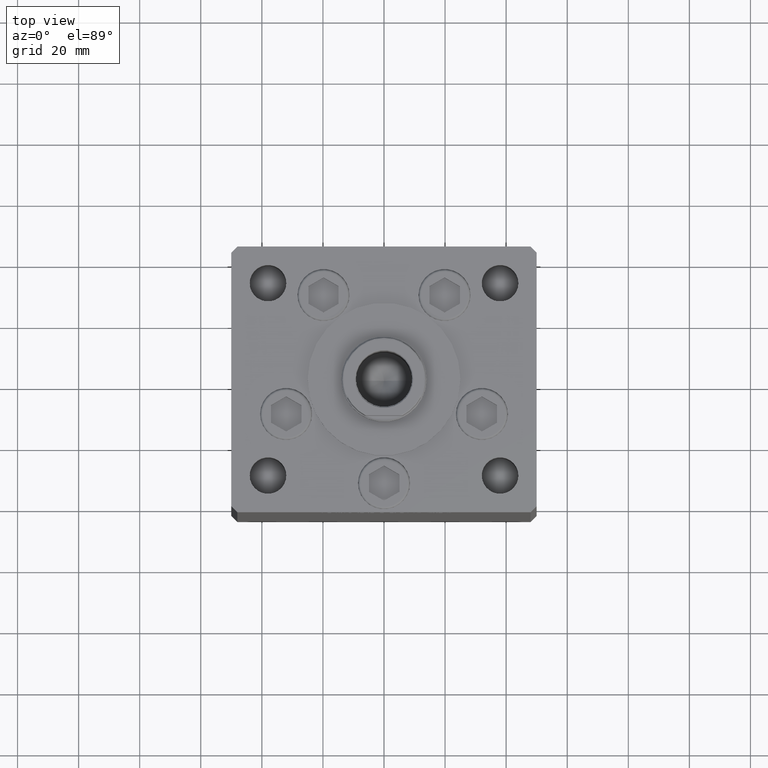
[diagram: clean part render]
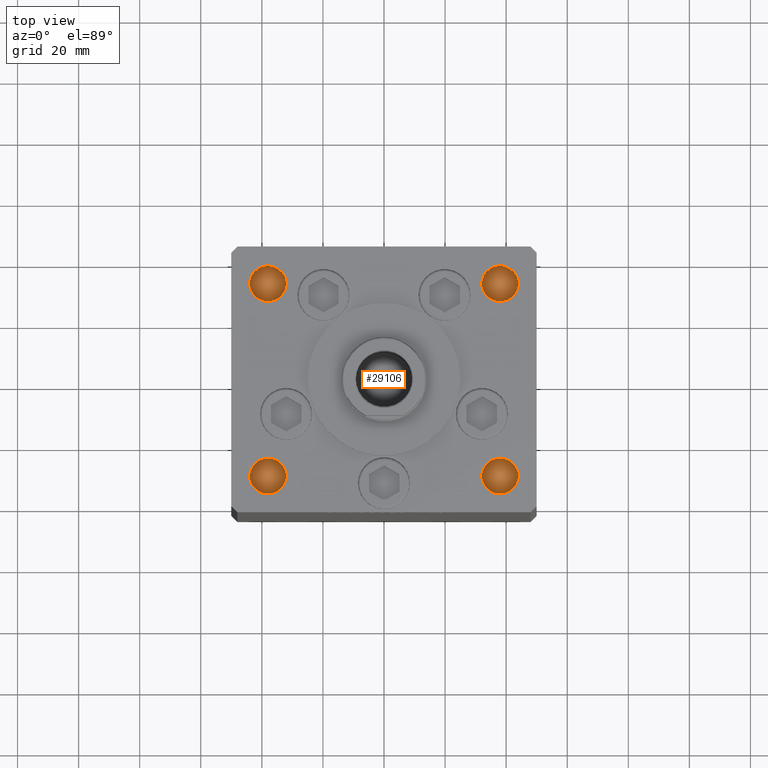
[diagram: same view with one face highlighted and labeled with its STEP entity id]
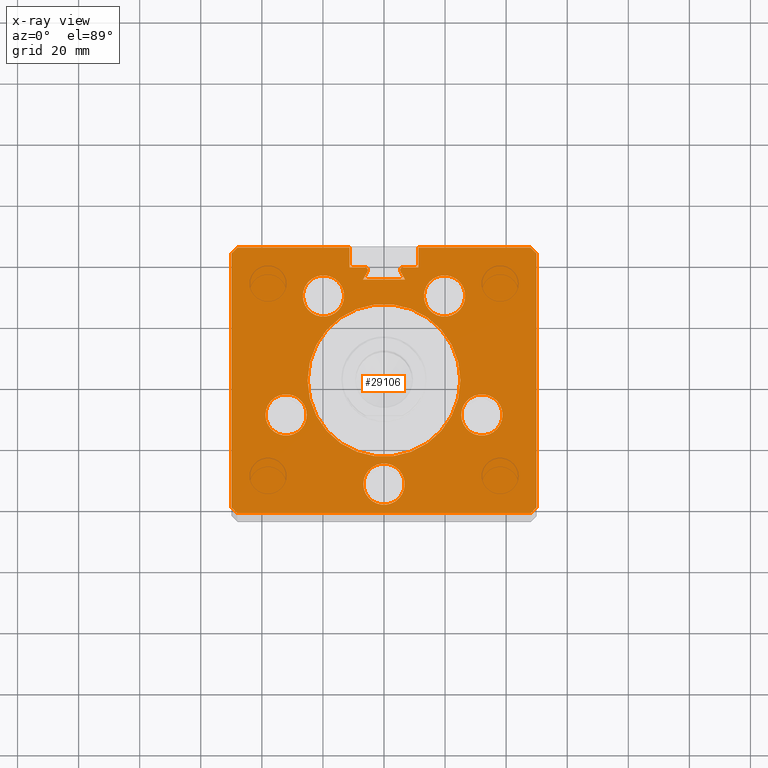
[diagram: x-ray of the same camera — body ghosted, the highlighted face saturated]
A machine part, top view. The second image highlights one B-rep face of the part: STEP entity #29106.
The next image is the same camera in x-ray: the body ghosted, the highlighted face saturated — about 0% of this face is hidden behind the body in this view.
In plain terms, the highlighted planar face has unit normal (0, 0, -1).
Its self-contained STEP definition (entity closure, byte-faithful):
#56 = EDGE_CURVE ( 'NONE', #43199, #19791, #22592, .T. ) ;
#199 = VERTEX_POINT ( 'NONE', #37324 ) ;
#221 = CARTESIAN_POINT ( 'NONE',  ( 6.750000000000003553, -34.00000000000000000, 148.5000000000000000 ) ) ;
#310 = CIRCLE ( 'NONE', #44102, 6.749999999999999112 ) ;
#437 = CIRCLE ( 'NONE', #17263, 6.749999999999999112 ) ;
#471 = CIRCLE ( 'NONE', #33299, 6.749999999999999112 ) ;
#813 = VECTOR ( 'NONE', #31363, 1000.000000000000000 ) ;
#921 = VERTEX_POINT ( 'NONE', #2554 ) ;
#1151 = CARTESIAN_POINT ( 'NONE',  ( 25.30550741379015989, -11.33333333333332682, 148.5000000000000000 ) ) ;
#1188 = AXIS2_PLACEMENT_3D ( 'NONE', #34553, #46676, #10538 ) ;
#1381 = VERTEX_POINT ( 'NONE', #45202 ) ;
#1489 = CARTESIAN_POINT ( 'NONE',  ( -6.876153656360465050, 32.99999999999986500, 148.5000000000000000 ) ) ;
#1577 = VERTEX_POINT ( 'NONE', #48288 ) ;
#1777 = CARTESIAN_POINT ( 'NONE',  ( 0.000000000000000000, 0.000000000000000000, 148.5000000000000000 ) ) ;
#1908 = DIRECTION ( 'NONE',  ( 0.000000000000000000, 0.000000000000000000, -1.000000000000000000 ) ) ;
#2016 = ORIENTED_EDGE ( 'NONE', *, *, #36151, .T. ) ;
#2270 = EDGE_LOOP ( 'NONE', ( #43406, #33027 ) ) ;
#2280 = FACE_BOUND ( 'NONE', #27965, .T. ) ;
#2554 = CARTESIAN_POINT ( 'NONE',  ( 11.24999999999999822, 36.99999999999999289, 148.5000000000000000 ) ) ;
#2576 = EDGE_CURVE ( 'NONE', #36207, #1381, #16631, .T. ) ;
#2827 = DIRECTION ( 'NONE',  ( 0.000000000000000000, 0.000000000000000000, -1.000000000000000000 ) ) ;
#2949 = CARTESIAN_POINT ( 'NONE',  ( 6.183333333333997928, 36.06666666666598786, 148.5000000000000000 ) ) ;
#3422 = CARTESIAN_POINT ( 'NONE',  ( -19.44653440471352113, 11.22746187336665713, 148.5000000000000000 ) ) ;
#3482 = CARTESIAN_POINT ( 'NONE',  ( 0.000000000000000000, 0.000000000000000000, 148.5000000000000000 ) ) ;
#3830 = VERTEX_POINT ( 'NONE', #35268 ) ;
#3851 = EDGE_CURVE ( 'NONE', #38135, #921, #34479, .T. ) ;
#4039 = VECTOR ( 'NONE', #12987, 1000.000000000000000 ) ;
#4229 = VERTEX_POINT ( 'NONE', #35721 ) ;
#4366 = VERTEX_POINT ( 'NONE', #15081 ) ;
#4700 = VECTOR ( 'NONE', #14923, 1000.000000000000000 ) ;
#4837 = VERTEX_POINT ( 'NONE', #45790 ) ;
#4892 = AXIS2_PLACEMENT_3D ( 'NONE', #19488, #27119, #31861 ) ;
#5062 = DIRECTION ( 'NONE',  ( 0.4999999999999996114, -0.8660254037844389297, 0.000000000000000000 ) ) ;
#5672 = EDGE_CURVE ( 'NONE', #50940, #41964, #10432, .T. ) ;
#5759 = DIRECTION ( 'NONE',  ( 0.000000000000000000, 0.000000000000000000, 1.000000000000000000 ) ) ;
#5868 = VERTEX_POINT ( 'NONE', #10932 ) ;
#6228 = VECTOR ( 'NONE', #11863, 1000.000000000000000 ) ;
#6359 = VERTEX_POINT ( 'NONE', #34381 ) ;
#6761 = CARTESIAN_POINT ( 'NONE',  ( -48.00000000000000711, 43.50000000000000000, 148.5000000000000000 ) ) ;
#6852 = DIRECTION ( 'NONE',  ( -0.000000000000000000, 0.000000000000000000, 1.000000000000000000 ) ) ;
#6957 = CARTESIAN_POINT ( 'NONE',  ( 50.00000000000001421, 41.49999999999999289, 148.5000000000000000 ) ) ;
#6961 = DIRECTION ( 'NONE',  ( 1.000000000000000000, 0.000000000000000000, 0.000000000000000000 ) ) ;
#8124 = CARTESIAN_POINT ( 'NONE',  ( 32.05550741379015989, -11.33333333333332682, 148.5000000000000000 ) ) ;
#8386 = VERTEX_POINT ( 'NONE', #30360 ) ;
#8706 = DIRECTION ( 'NONE',  ( 0.000000000000000000, 0.000000000000000000, 1.000000000000000000 ) ) ;
#8797 = EDGE_CURVE ( 'NONE', #41261, #41526, #437, .T. ) ;
#8938 = VECTOR ( 'NONE', #25297, 1000.000000000000000 ) ;
#9125 = DIRECTION ( 'NONE',  ( 0.000000000000000000, 0.000000000000000000, 1.000000000000000000 ) ) ;
#9154 = ORIENTED_EDGE ( 'NONE', *, *, #25549, .T. ) ;
#9158 = VERTEX_POINT ( 'NONE', #33146 ) ;
#9309 = VERTEX_POINT ( 'NONE', #20111 ) ;
#9416 = EDGE_LOOP ( 'NONE', ( #35219, #38385 ) ) ;
#10227 = VERTEX_POINT ( 'NONE', #14912 ) ;
#10249 = DIRECTION ( 'NONE',  ( 1.000000000000000000, 0.000000000000000000, 0.000000000000000000 ) ) ;
#10432 = CIRCLE ( 'NONE', #1188, 6.749999999999999112 ) ;
#10538 = DIRECTION ( 'NONE',  ( 1.000000000000000000, 0.000000000000000000, 0.000000000000000000 ) ) ;
#10723 = VECTOR ( 'NONE', #23046, 1000.000000000000000 ) ;
#10932 = CARTESIAN_POINT ( 'NONE',  ( -11.24999999999999822, 43.50000000000000000, 148.5000000000000000 ) ) ;
#11621 = CARTESIAN_POINT ( 'NONE',  ( -5.249999999999996447, 36.06666666666598786, 148.5000000000000000 ) ) ;
#11863 = DIRECTION ( 'NONE',  ( 0.4999999999999996114, 0.8660254037844389297, 0.000000000000000000 ) ) ;
#12066 = DIRECTION ( 'NONE',  ( 0.000000000000000000, 0.000000000000000000, 1.000000000000000000 ) ) ;
#12857 = VERTEX_POINT ( 'NONE', #221 ) ;
#12881 = CARTESIAN_POINT ( 'NONE',  ( 0.000000000000000000, 32.99999999999986500, 148.5000000000000000 ) ) ;
#12987 = DIRECTION ( 'NONE',  ( -1.000000000000000000, 0.000000000000000000, 0.000000000000000000 ) ) ;
#13073 = DIRECTION ( 'NONE',  ( 1.000000000000000000, 0.000000000000000000, 0.000000000000000000 ) ) ;
#13166 = DIRECTION ( 'NONE',  ( 1.000000000000000000, 0.000000000000000000, 0.000000000000000000 ) ) ;
#13953 = CARTESIAN_POINT ( 'NONE',  ( 49.99999999999998579, -41.49999999999999289, 148.5000000000000000 ) ) ;
#14143 = FACE_BOUND ( 'NONE', #9416, .T. ) ;
#14289 = EDGE_CURVE ( 'NONE', #1577, #48088, #44427, .T. ) ;
#14325 = AXIS2_PLACEMENT_3D ( 'NONE', #18053, #9125, #13073 ) ;
#14627 = EDGE_LOOP ( 'NONE', ( #25777, #26316 ) ) ;
#14912 = CARTESIAN_POINT ( 'NONE',  ( 38.80550741379015989, -11.33333333333332682, 148.5000000000000000 ) ) ;
#14923 = DIRECTION ( 'NONE',  ( -0.7071067811865487940, -0.7071067811865463515, 0.000000000000000000 ) ) ;
#14983 = DIRECTION ( 'NONE',  ( 1.000000000000000000, 0.000000000000000000, 0.000000000000000000 ) ) ;
#15081 = CARTESIAN_POINT ( 'NONE',  ( 49.99999999999998579, -41.49999999999999289, 148.5000000000000000 ) ) ;
#15088 = VECTOR ( 'NONE', #5062, 1000.000000000000000 ) ;
#15283 = ORIENTED_EDGE ( 'NONE', *, *, #2576, .T. ) ;
#15338 = DIRECTION ( 'NONE',  ( 1.000000000000000000, 0.000000000000000000, 0.000000000000000000 ) ) ;
#15991 = LINE ( 'NONE', #32336, #19634 ) ;
#16087 = VERTEX_POINT ( 'NONE', #35440 ) ;
#16222 = ORIENTED_EDGE ( 'NONE', *, *, #22995, .T. ) ;
#16391 = CARTESIAN_POINT ( 'NONE',  ( 32.05550741379015989, -11.33333333333332682, 148.5000000000000000 ) ) ;
#16581 = EDGE_CURVE ( 'NONE', #4366, #9158, #25577, .T. ) ;
#16592 = DIRECTION ( 'NONE',  ( -1.000000000000000000, 0.000000000000000000, 0.000000000000000000 ) ) ;
#16603 = LINE ( 'NONE', #21342, #47108 ) ;
#16631 = LINE ( 'NONE', #36679, #29058 ) ;
#16678 = EDGE_CURVE ( 'NONE', #41964, #50940, #48670, .T. ) ;
#16861 = CARTESIAN_POINT ( 'NONE',  ( 13.07068048781373371, 27.62500000000000711, 148.5000000000000000 ) ) ;
#17106 = ORIENTED_EDGE ( 'NONE', *, *, #29124, .T. ) ;
#17203 = CARTESIAN_POINT ( 'NONE',  ( 0.000000000000000000, 36.99999999999999289, 148.5000000000000000 ) ) ;
#17263 = AXIS2_PLACEMENT_3D ( 'NONE', #46402, #46915, #10249 ) ;
#17402 = CARTESIAN_POINT ( 'NONE',  ( -38.80550741379015989, -11.33333333333333570, 148.5000000000000000 ) ) ;
#17919 = EDGE_CURVE ( 'NONE', #12857, #4837, #41963, .T. ) ;
#17990 = DIRECTION ( 'NONE',  ( 1.000000000000000000, 0.000000000000000000, 0.000000000000000000 ) ) ;
#18053 = CARTESIAN_POINT ( 'NONE',  ( 19.82068048781373548, 27.62500000000000711, 148.5000000000000000 ) ) ;
#18103 = DIRECTION ( 'NONE',  ( 1.000000000000000000, 0.000000000000000000, 0.000000000000000000 ) ) ;
#18137 = DIRECTION ( 'NONE',  ( 1.000000000000000000, 0.000000000000000000, 0.000000000000000000 ) ) ;
#18155 = EDGE_CURVE ( 'NONE', #33958, #4229, #31889, .T. ) ;
#18269 = LINE ( 'NONE', #45996, #813 ) ;
#18363 = FACE_BOUND ( 'NONE', #24143, .T. ) ;
#18372 = AXIS2_PLACEMENT_3D ( 'NONE', #22330, #29484, #18103 ) ;
#18572 = ORIENTED_EDGE ( 'NONE', *, *, #38892, .F. ) ;
#18812 = CARTESIAN_POINT ( 'NONE',  ( -26.57068048781373903, 27.62500000000000355, 148.5000000000000000 ) ) ;
#19106 = VECTOR ( 'NONE', #43439, 1000.000000000000000 ) ;
#19218 = AXIS2_PLACEMENT_3D ( 'NONE', #35192, #31744, #6961 ) ;
#19428 = ORIENTED_EDGE ( 'NONE', *, *, #31018, .T. ) ;
#19488 = CARTESIAN_POINT ( 'NONE',  ( -32.05550741379015989, -11.33333333333333570, 148.5000000000000000 ) ) ;
#19519 = EDGE_CURVE ( 'NONE', #3830, #25708, #44294, .T. ) ;
#19520 = CARTESIAN_POINT ( 'NONE',  ( 11.24999999999999112, 43.50000000000000000, 148.5000000000000000 ) ) ;
#19634 = VECTOR ( 'NONE', #32605, 1000.000000000000114 ) ;
#19774 = AXIS2_PLACEMENT_3D ( 'NONE', #38454, #2827, #18137 ) ;
#19791 = VERTEX_POINT ( 'NONE', #48438 ) ;
#19831 = DIRECTION ( 'NONE',  ( -0.000000000000000000, 0.000000000000000000, 1.000000000000000000 ) ) ;
#19935 = ORIENTED_EDGE ( 'NONE', *, *, #21748, .T. ) ;
#20111 = CARTESIAN_POINT ( 'NONE',  ( -6.183333333333997928, 36.99999999999999289, 148.5000000000000000 ) ) ;
#20577 = CARTESIAN_POINT ( 'NONE',  ( 4.163799117101000559E-15, -34.00000000000000000, 148.5000000000000000 ) ) ;
#21000 = CARTESIAN_POINT ( 'NONE',  ( -13.07068048781374259, 27.62500000000000355, 148.5000000000000000 ) ) ;
#21031 = VERTEX_POINT ( 'NONE', #23983 ) ;
#21342 = CARTESIAN_POINT ( 'NONE',  ( -11.24999999999999822, 43.50000000000000000, 148.5000000000000000 ) ) ;
#21748 = EDGE_CURVE ( 'NONE', #16087, #5868, #18269, .T. ) ;
#21854 = CARTESIAN_POINT ( 'NONE',  ( -47.99999999999998579, -43.50000000000000000, 148.5000000000000000 ) ) ;
#21869 = VERTEX_POINT ( 'NONE', #16861 ) ;
#21885 = DIRECTION ( 'NONE',  ( -0.7071067811865474617, -0.7071067811865474617, 0.000000000000000000 ) ) ;
#22103 = LINE ( 'NONE', #21854, #8938 ) ;
#22330 = CARTESIAN_POINT ( 'NONE',  ( 19.82068048781373548, 27.62500000000000711, 148.5000000000000000 ) ) ;
#22592 = LINE ( 'NONE', #46855, #48502 ) ;
#22995 = EDGE_CURVE ( 'NONE', #1381, #21031, #15991, .T. ) ;
#23046 = DIRECTION ( 'NONE',  ( -3.344045254895050973E-16, -1.000000000000000000, 0.000000000000000000 ) ) ;
#23239 = AXIS2_PLACEMENT_3D ( 'NONE', #25798, #5759, #33966 ) ;
#23275 = AXIS2_PLACEMENT_3D ( 'NONE', #2949, #28462, #28727 ) ;
#23369 = AXIS2_PLACEMENT_3D ( 'NONE', #3482, #19831, #15338 ) ;
#23472 = ORIENTED_EDGE ( 'NONE', *, *, #8797, .F. ) ;
#23983 = CARTESIAN_POINT ( 'NONE',  ( -47.99999999999998579, -43.50000000000000000, 148.5000000000000000 ) ) ;
#24143 = EDGE_LOOP ( 'NONE', ( #37077, #28473 ) ) ;
#24259 = VERTEX_POINT ( 'NONE', #1151 ) ;
#24423 = ORIENTED_EDGE ( 'NONE', *, *, #56, .F. ) ;
#24460 = AXIS2_PLACEMENT_3D ( 'NONE', #26888, #6852, #50122 ) ;
#24469 = EDGE_CURVE ( 'NONE', #24259, #10227, #310, .T. ) ;
#24689 = CARTESIAN_POINT ( 'NONE',  ( 48.00000000000000711, 43.50000000000000000, 148.5000000000000000 ) ) ;
#25179 = CARTESIAN_POINT ( 'NONE',  ( 5.375042956467942723, 35.59999999999898534, 148.5000000000000000 ) ) ;
#25297 = DIRECTION ( 'NONE',  ( 1.000000000000000000, 0.000000000000000000, 0.000000000000000000 ) ) ;
#25549 = EDGE_CURVE ( 'NONE', #25708, #4229, #31374, .T. ) ;
#25577 = LINE ( 'NONE', #13953, #27602 ) ;
#25708 = VERTEX_POINT ( 'NONE', #1489 ) ;
#25777 = ORIENTED_EDGE ( 'NONE', *, *, #14289, .F. ) ;
#25798 = CARTESIAN_POINT ( 'NONE',  ( -19.82068048781374259, 27.62500000000000355, 148.5000000000000000 ) ) ;
#26316 = ORIENTED_EDGE ( 'NONE', *, *, #49933, .F. ) ;
#26582 = VECTOR ( 'NONE', #30131, 1000.000000000000000 ) ;
#26888 = CARTESIAN_POINT ( 'NONE',  ( 0.000000000000000000, 0.000000000000000000, 148.5000000000000000 ) ) ;
#26990 = CIRCLE ( 'NONE', #14325, 6.749999999999999112 ) ;
#27119 = DIRECTION ( 'NONE',  ( 0.000000000000000000, 0.000000000000000000, 1.000000000000000000 ) ) ;
#27443 = CIRCLE ( 'NONE', #23239, 6.749999999999999112 ) ;
#27558 = CIRCLE ( 'NONE', #41061, 6.749999999999999112 ) ;
#27602 = VECTOR ( 'NONE', #21885, 1000.000000000000114 ) ;
#27634 = CIRCLE ( 'NONE', #18372, 6.749999999999999112 ) ;
#27841 = LINE ( 'NONE', #6761, #4700 ) ;
#27962 = EDGE_LOOP ( 'NONE', ( #19428, #19935, #50983, #17106, #15283, #16222, #2016, #31256, #45258, #24423, #49823, #48775, #34630, #48929, #28279, #49197, #9154, #35251, #48851 ) ) ;
#27965 = EDGE_LOOP ( 'NONE', ( #31188, #18572 ) ) ;
#28094 = EDGE_CURVE ( 'NONE', #9309, #33958, #36656, .T. ) ;
#28266 = DIRECTION ( 'NONE',  ( 1.000000000000000000, 0.000000000000000000, 0.000000000000000000 ) ) ;
#28279 = ORIENTED_EDGE ( 'NONE', *, *, #50547, .T. ) ;
#28462 = DIRECTION ( 'NONE',  ( 0.000000000000000000, 0.000000000000000000, -1.000000000000000000 ) ) ;
#28473 = ORIENTED_EDGE ( 'NONE', *, *, #42310, .F. ) ;
#28727 = DIRECTION ( 'NONE',  ( 1.000000000000000000, 0.000000000000000000, 0.000000000000000000 ) ) ;
#28889 = EDGE_CURVE ( 'NONE', #10227, #24259, #471, .T. ) ;
#29058 = VECTOR ( 'NONE', #40637, 1000.000000000000000 ) ;
#29106 = ADVANCED_FACE ( 'NONE', ( #14143, #2280, #33696, #18363, #50032, #49786, #29730 ), #45835, .F. ) ;
#29124 = EDGE_CURVE ( 'NONE', #8386, #36207, #27841, .T. ) ;
#29484 = DIRECTION ( 'NONE',  ( 0.000000000000000000, 0.000000000000000000, 1.000000000000000000 ) ) ;
#29730 = FACE_BOUND ( 'NONE', #14627, .T. ) ;
#30131 = DIRECTION ( 'NONE',  ( -1.000000000000000000, 0.000000000000000000, 0.000000000000000000 ) ) ;
#30360 = CARTESIAN_POINT ( 'NONE',  ( -48.00000000000000711, 43.50000000000000000, 148.5000000000000000 ) ) ;
#30763 = AXIS2_PLACEMENT_3D ( 'NONE', #1777, #34460, #50549 ) ;
#31018 = EDGE_CURVE ( 'NONE', #9309, #16087, #49675, .T. ) ;
#31188 = ORIENTED_EDGE ( 'NONE', *, *, #17919, .F. ) ;
#31256 = ORIENTED_EDGE ( 'NONE', *, *, #16581, .F. ) ;
#31363 = DIRECTION ( 'NONE',  ( 0.000000000000000000, 1.000000000000000000, 0.000000000000000000 ) ) ;
#31374 = LINE ( 'NONE', #3422, #6228 ) ;
#31744 = DIRECTION ( 'NONE',  ( 0.000000000000000000, 0.000000000000000000, 1.000000000000000000 ) ) ;
#31861 = DIRECTION ( 'NONE',  ( 1.000000000000000000, 0.000000000000000000, 0.000000000000000000 ) ) ;
#31889 = CIRCLE ( 'NONE', #42005, 0.9333333333340008142 ) ;
#32336 = CARTESIAN_POINT ( 'NONE',  ( -49.99999999999998579, -41.49999999999999289, 148.5000000000000000 ) ) ;
#32605 = DIRECTION ( 'NONE',  ( 0.7071067811865474617, -0.7071067811865474617, 0.000000000000000000 ) ) ;
#33027 = ORIENTED_EDGE ( 'NONE', *, *, #24469, .F. ) ;
#33039 = LINE ( 'NONE', #17203, #4039 ) ;
#33146 = CARTESIAN_POINT ( 'NONE',  ( 47.99999999999998579, -43.50000000000000000, 148.5000000000000000 ) ) ;
#33203 = LINE ( 'NONE', #49299, #48773 ) ;
#33299 = AXIS2_PLACEMENT_3D ( 'NONE', #8124, #12066, #14983 ) ;
#33696 = FACE_BOUND ( 'NONE', #2270, .T. ) ;
#33839 = CARTESIAN_POINT ( 'NONE',  ( 0.000000000000000000, 36.99999999999999289, 148.5000000000000000 ) ) ;
#33958 = VERTEX_POINT ( 'NONE', #11621 ) ;
#33966 = DIRECTION ( 'NONE',  ( 1.000000000000000000, 0.000000000000000000, 0.000000000000000000 ) ) ;
#34381 = CARTESIAN_POINT ( 'NONE',  ( 26.57068048781373193, 27.62500000000000711, 148.5000000000000000 ) ) ;
#34460 = DIRECTION ( 'NONE',  ( 0.000000000000000000, 0.000000000000000000, -1.000000000000000000 ) ) ;
#34479 = LINE ( 'NONE', #34735, #19106 ) ;
#34553 = CARTESIAN_POINT ( 'NONE',  ( -32.05550741379015989, -11.33333333333333570, 148.5000000000000000 ) ) ;
#34630 = ORIENTED_EDGE ( 'NONE', *, *, #42483, .T. ) ;
#34735 = CARTESIAN_POINT ( 'NONE',  ( 11.24999999999999822, 0.000000000000000000, 148.5000000000000000 ) ) ;
#35192 = CARTESIAN_POINT ( 'NONE',  ( 4.163799117101000559E-15, -34.00000000000000000, 148.5000000000000000 ) ) ;
#35219 = ORIENTED_EDGE ( 'NONE', *, *, #5672, .F. ) ;
#35251 = ORIENTED_EDGE ( 'NONE', *, *, #18155, .F. ) ;
#35262 = EDGE_CURVE ( 'NONE', #41526, #41261, #27443, .T. ) ;
#35268 = CARTESIAN_POINT ( 'NONE',  ( 6.876153656360465050, 32.99999999999986500, 148.5000000000000000 ) ) ;
#35440 = CARTESIAN_POINT ( 'NONE',  ( -11.24999999999999822, 36.99999999999999289, 148.5000000000000000 ) ) ;
#35721 = CARTESIAN_POINT ( 'NONE',  ( -5.375042956467942723, 35.59999999999898534, 148.5000000000000000 ) ) ;
#36151 = EDGE_CURVE ( 'NONE', #21031, #9158, #22103, .T. ) ;
#36207 = VERTEX_POINT ( 'NONE', #50836 ) ;
#36442 = EDGE_CURVE ( 'NONE', #44988, #199, #46032, .T. ) ;
#36656 = CIRCLE ( 'NONE', #19774, 0.9333333333340008142 ) ;
#36679 = CARTESIAN_POINT ( 'NONE',  ( -50.00000000000001421, 41.49999999999999289, 148.5000000000000000 ) ) ;
#37077 = ORIENTED_EDGE ( 'NONE', *, *, #49388, .F. ) ;
#37324 = CARTESIAN_POINT ( 'NONE',  ( 6.183333333333997928, 36.99999999999999289, 148.5000000000000000 ) ) ;
#37752 = LINE ( 'NONE', #45161, #15088 ) ;
#38046 = CARTESIAN_POINT ( 'NONE',  ( -6.183333333333997928, 36.06666666666598786, 148.5000000000000000 ) ) ;
#38135 = VERTEX_POINT ( 'NONE', #19520 ) ;
#38385 = ORIENTED_EDGE ( 'NONE', *, *, #16678, .F. ) ;
#38454 = CARTESIAN_POINT ( 'NONE',  ( -6.183333333333997928, 36.06666666666598786, 148.5000000000000000 ) ) ;
#38892 = EDGE_CURVE ( 'NONE', #4837, #12857, #27558, .T. ) ;
#38944 = DIRECTION ( 'NONE',  ( 0.7071067811865487940, -0.7071067811865463515, 0.000000000000000000 ) ) ;
#39330 = EDGE_LOOP ( 'NONE', ( #23472, #40938 ) ) ;
#39618 = CIRCLE ( 'NONE', #24460, 25.00000000000000000 ) ;
#40379 = EDGE_CURVE ( 'NONE', #19791, #4366, #43100, .T. ) ;
#40637 = DIRECTION ( 'NONE',  ( 3.344045254895050973E-16, -1.000000000000000000, 0.000000000000000000 ) ) ;
#40938 = ORIENTED_EDGE ( 'NONE', *, *, #35262, .F. ) ;
#41061 = AXIS2_PLACEMENT_3D ( 'NONE', #20577, #8706, #45382 ) ;
#41261 = VERTEX_POINT ( 'NONE', #21000 ) ;
#41526 = VERTEX_POINT ( 'NONE', #18812 ) ;
#41963 = CIRCLE ( 'NONE', #19218, 6.749999999999999112 ) ;
#41964 = VERTEX_POINT ( 'NONE', #17402 ) ;
#42005 = AXIS2_PLACEMENT_3D ( 'NONE', #38046, #1908, #17990 ) ;
#42310 = EDGE_CURVE ( 'NONE', #21869, #6359, #27634, .T. ) ;
#42483 = EDGE_CURVE ( 'NONE', #921, #199, #33039, .T. ) ;
#42914 = CARTESIAN_POINT ( 'NONE',  ( 25.00000000000000000, 3.061616997868383043E-15, 148.5000000000000000 ) ) ;
#43100 = LINE ( 'NONE', #6957, #10723 ) ;
#43199 = VERTEX_POINT ( 'NONE', #24689 ) ;
#43406 = ORIENTED_EDGE ( 'NONE', *, *, #28889, .F. ) ;
#43439 = DIRECTION ( 'NONE',  ( -0.000000000000000000, -1.000000000000000000, 0.000000000000000000 ) ) ;
#43583 = DIRECTION ( 'NONE',  ( 0.000000000000000000, 0.000000000000000000, 1.000000000000000000 ) ) ;
#44102 = AXIS2_PLACEMENT_3D ( 'NONE', #16391, #43583, #28266 ) ;
#44294 = LINE ( 'NONE', #12881, #49575 ) ;
#44427 = CIRCLE ( 'NONE', #23369, 25.00000000000000000 ) ;
#44544 = EDGE_CURVE ( 'NONE', #38135, #43199, #33203, .T. ) ;
#44841 = CARTESIAN_POINT ( 'NONE',  ( -25.30550741379015989, -11.33333333333333570, 148.5000000000000000 ) ) ;
#44988 = VERTEX_POINT ( 'NONE', #25179 ) ;
#45161 = CARTESIAN_POINT ( 'NONE',  ( 19.44653440471352113, 11.22746187336665713, 148.5000000000000000 ) ) ;
#45202 = CARTESIAN_POINT ( 'NONE',  ( -49.99999999999998579, -41.49999999999999289, 148.5000000000000000 ) ) ;
#45258 = ORIENTED_EDGE ( 'NONE', *, *, #40379, .F. ) ;
#45382 = DIRECTION ( 'NONE',  ( 1.000000000000000000, 0.000000000000000000, 0.000000000000000000 ) ) ;
#45790 = CARTESIAN_POINT ( 'NONE',  ( -6.749999999999994671, -34.00000000000000000, 148.5000000000000000 ) ) ;
#45835 = PLANE ( 'NONE',  #30763 ) ;
#45996 = CARTESIAN_POINT ( 'NONE',  ( -11.24999999999999822, 0.000000000000000000, 148.5000000000000000 ) ) ;
#46032 = CIRCLE ( 'NONE', #23275, 0.9333333333340008142 ) ;
#46402 = CARTESIAN_POINT ( 'NONE',  ( -19.82068048781374259, 27.62500000000000355, 148.5000000000000000 ) ) ;
#46676 = DIRECTION ( 'NONE',  ( 0.000000000000000000, 0.000000000000000000, 1.000000000000000000 ) ) ;
#46855 = CARTESIAN_POINT ( 'NONE',  ( 48.00000000000000711, 43.50000000000000000, 148.5000000000000000 ) ) ;
#46915 = DIRECTION ( 'NONE',  ( 0.000000000000000000, 0.000000000000000000, 1.000000000000000000 ) ) ;
#47108 = VECTOR ( 'NONE', #49567, 1000.000000000000000 ) ;
#48088 = VERTEX_POINT ( 'NONE', #42914 ) ;
#48288 = CARTESIAN_POINT ( 'NONE',  ( -25.00000000000000000, 0.000000000000000000, 148.5000000000000000 ) ) ;
#48438 = CARTESIAN_POINT ( 'NONE',  ( 50.00000000000001421, 41.49999999999999289, 148.5000000000000000 ) ) ;
#48502 = VECTOR ( 'NONE', #38944, 1000.000000000000000 ) ;
#48670 = CIRCLE ( 'NONE', #4892, 6.749999999999999112 ) ;
#48773 = VECTOR ( 'NONE', #13166, 1000.000000000000000 ) ;
#48775 = ORIENTED_EDGE ( 'NONE', *, *, #3851, .T. ) ;
#48851 = ORIENTED_EDGE ( 'NONE', *, *, #28094, .F. ) ;
#48929 = ORIENTED_EDGE ( 'NONE', *, *, #36442, .F. ) ;
#49197 = ORIENTED_EDGE ( 'NONE', *, *, #19519, .T. ) ;
#49299 = CARTESIAN_POINT ( 'NONE',  ( -11.24999999999999822, 43.50000000000000000, 148.5000000000000000 ) ) ;
#49388 = EDGE_CURVE ( 'NONE', #6359, #21869, #26990, .T. ) ;
#49567 = DIRECTION ( 'NONE',  ( 1.000000000000000000, 0.000000000000000000, 0.000000000000000000 ) ) ;
#49575 = VECTOR ( 'NONE', #16592, 1000.000000000000000 ) ;
#49675 = LINE ( 'NONE', #33839, #26582 ) ;
#49786 = FACE_OUTER_BOUND ( 'NONE', #27962, .T. ) ;
#49823 = ORIENTED_EDGE ( 'NONE', *, *, #44544, .F. ) ;
#49933 = EDGE_CURVE ( 'NONE', #48088, #1577, #39618, .T. ) ;
#50032 = FACE_BOUND ( 'NONE', #39330, .T. ) ;
#50122 = DIRECTION ( 'NONE',  ( 1.000000000000000000, 0.000000000000000000, 0.000000000000000000 ) ) ;
#50547 = EDGE_CURVE ( 'NONE', #44988, #3830, #37752, .T. ) ;
#50549 = DIRECTION ( 'NONE',  ( -1.000000000000000000, 0.000000000000000000, -0.000000000000000000 ) ) ;
#50800 = EDGE_CURVE ( 'NONE', #8386, #5868, #16603, .T. ) ;
#50836 = CARTESIAN_POINT ( 'NONE',  ( -50.00000000000001421, 41.49999999999999289, 148.5000000000000000 ) ) ;
#50940 = VERTEX_POINT ( 'NONE', #44841 ) ;
#50983 = ORIENTED_EDGE ( 'NONE', *, *, #50800, .F. ) ;